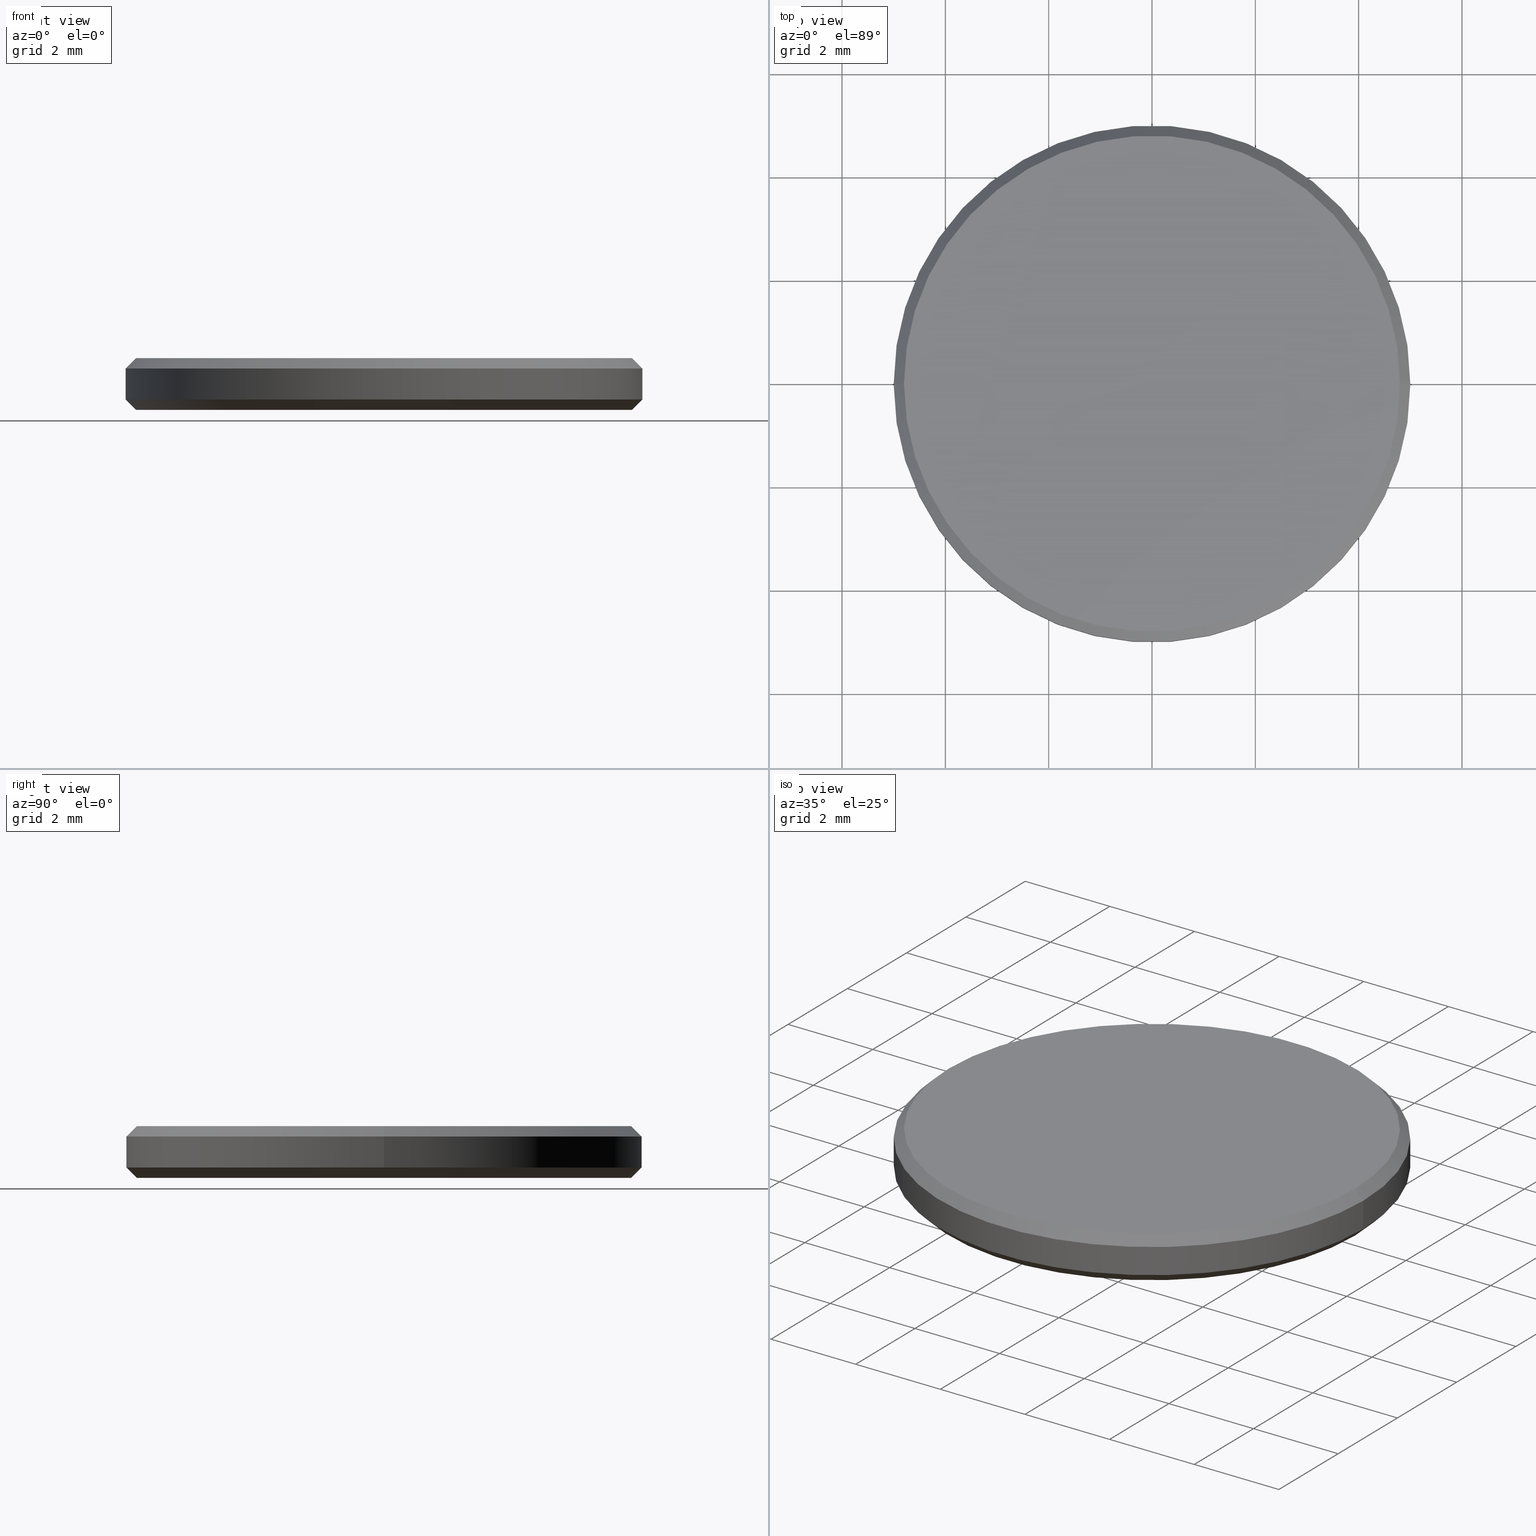
[diagram: canonical four-view strip — front | top / right | iso, engineering-drawing reading convention]
A machine part, canonical four-view strip (front | top / right | iso — engineering-drawing reading convention). The complete STEP part file that produces these views, byte-faithful:
ISO-10303-21;
HEADER;
FILE_DESCRIPTION (( 'STEP AP214' ),
    '1' );
FILE_NAME ('GNIF-170-4260-D10.STEP',
    '2024-07-19T14:42:47',
    ( '' ),
    ( '' ),
    'SwSTEP 2.0',
    'SolidWorks 2022',
    '' );
FILE_SCHEMA (( 'AUTOMOTIVE_DESIGN' ));
ENDSEC;

DATA;
#1 = CONICAL_SURFACE ( 'NONE', #37, 4.800000000000002487, 0.7853981633974461696 ) ;
#2 = ORIENTED_EDGE ( 'NONE', *, *, #224, .F. ) ;
#3 = AXIS2_PLACEMENT_3D ( 'NONE', #187, #182, #12 ) ;
#4 = ORIENTED_EDGE ( 'NONE', *, *, #63, .T. ) ;
#5 = AXIS2_PLACEMENT_3D ( 'NONE', #89, #106, #218 ) ;
#6 = ORIENTED_EDGE ( 'NONE', *, *, #63, .F. ) ;
#7 = EDGE_LOOP ( 'NONE', ( #189, #79, #4, #193 ) ) ;
#8 = VECTOR ( 'NONE', #35, 1000.000000000000114 ) ;
#9 = ADVANCED_FACE ( 'NONE', ( #192 ), #177, .T. ) ;
#10 = DIRECTION ( 'NONE',  ( -0.7071067811865460184, 0.000000000000000000, -0.7071067811865489050 ) ) ;
#11 = FACE_OUTER_BOUND ( 'NONE', #175, .T. ) ;
#12 = DIRECTION ( 'NONE',  ( 1.000000000000000000, 0.000000000000000000, 0.000000000000000000 ) ) ;
#13 = DIRECTION ( 'NONE',  ( 0.000000000000000000, 0.000000000000000000, -1.000000000000000000 ) ) ;
#14 = CARTESIAN_POINT ( 'NONE',  ( 0.000000000000000000, 0.000000000000000000, 0.1999999999999996503 ) ) ;
#15 = PRESENTATION_STYLE_ASSIGNMENT (( #40 ) ) ;
#16 = CARTESIAN_POINT ( 'NONE',  ( 0.000000000000000000, 0.000000000000000000, 0.000000000000000000 ) ) ;
#17 = CARTESIAN_POINT ( 'NONE',  ( -4.799999999999999822, 6.000769315822029754E-16, 0.000000000000000000 ) ) ;
#18 = VECTOR ( 'NONE', #201, 1000.000000000000000 ) ;
#19 = UNCERTAINTY_MEASURE_WITH_UNIT (LENGTH_MEASURE( 1.000000000000000082E-05 ), #197, 'distance_accuracy_value', 'NONE');
#20 = DIRECTION ( 'NONE',  ( 0.000000000000000000, 0.000000000000000000, 1.000000000000000000 ) ) ;
#21 = AXIS2_PLACEMENT_3D ( 'NONE', #104, #74, #84 ) ;
#22 = EDGE_CURVE ( 'NONE', #174, #156, #23, .T. ) ;
#23 = LINE ( 'NONE', #232, #231 ) ;
#24 = ORIENTED_EDGE ( 'NONE', *, *, #195, .F. ) ;
#25 = DIRECTION ( 'NONE',  ( 0.000000000000000000, 0.000000000000000000, -1.000000000000000000 ) ) ;
#26 = VERTEX_POINT ( 'NONE', #173 ) ;
#27 = AXIS2_PLACEMENT_3D ( 'NONE', #14, #200, #88 ) ;
#28 = ORIENTED_EDGE ( 'NONE', *, *, #188, .T. ) ;
#29 = ADVANCED_FACE ( 'NONE', ( #120 ), #1, .T. ) ;
#30 =( GEOMETRIC_REPRESENTATION_CONTEXT ( 3 ) GLOBAL_UNCERTAINTY_ASSIGNED_CONTEXT ( ( #170 ) ) GLOBAL_UNIT_ASSIGNED_CONTEXT ( ( #112, #168, #199 ) ) REPRESENTATION_CONTEXT ( 'NONE', 'WORKASPACE' ) );
#31 = LINE ( 'NONE', #125, #69 ) ;
#32 = STYLED_ITEM ( 'NONE', ( #15 ), #41 ) ;
#33 = DIRECTION ( 'NONE',  ( -0.000000000000000000, -0.000000000000000000, 1.000000000000000000 ) ) ;
#34 = DIRECTION ( 'NONE',  ( 0.000000000000000000, 0.000000000000000000, 1.000000000000000000 ) ) ;
#35 = DIRECTION ( 'NONE',  ( 0.7071067811865460184, 8.659560562354913137E-17, -0.7071067811865489050 ) ) ;
#36 = FACE_OUTER_BOUND ( 'NONE', #207, .T. ) ;
#37 = AXIS2_PLACEMENT_3D ( 'NONE', #47, #25, #99 ) ;
#38 = DIRECTION ( 'NONE',  ( -0.000000000000000000, -0.000000000000000000, 1.000000000000000000 ) ) ;
#39 = FACE_OUTER_BOUND ( 'NONE', #7, .T. ) ;
#40 = SURFACE_STYLE_USAGE ( .BOTH. , #55 ) ;
#41 = ADVANCED_BREP_SHAPE_REPRESENTATION ( 'GNIF-170-4260-D10', ( #103, #43 ), #235 ) ;
#42 = CONICAL_SURFACE ( 'NONE', #72, 5.000000000000000000, 0.7853981633974503884 ) ;
#43 = AXIS2_PLACEMENT_3D ( 'NONE', #87, #20, #225 ) ;
#44 = EDGE_CURVE ( 'NONE', #26, #122, #171, .T. ) ;
#45 = APPLICATION_CONTEXT ( 'automotive_design' ) ;
#46 = EDGE_LOOP ( 'NONE', ( #227, #209, #137, #49 ) ) ;
#47 = CARTESIAN_POINT ( 'NONE',  ( 0.000000000000000000, 0.000000000000000000, 1.000000000000000000 ) ) ;
#48 = VERTEX_POINT ( 'NONE', #198 ) ;
#49 = ORIENTED_EDGE ( 'NONE', *, *, #222, .F. ) ;
#50 = AXIS2_PLACEMENT_3D ( 'NONE', #217, #212, #204 ) ;
#51 = CARTESIAN_POINT ( 'NONE',  ( 0.000000000000000000, 0.000000000000000000, 0.000000000000000000 ) ) ;
#52 = MECHANICAL_DESIGN_GEOMETRIC_PRESENTATION_REPRESENTATION (  '', ( #32 ), #30 ) ;
#53 = DIRECTION ( 'NONE',  ( 1.000000000000000000, 0.000000000000000000, 0.000000000000000000 ) ) ;
#54 = PRODUCT_DEFINITION_SHAPE ( 'NONE', 'NONE',  #149 ) ;
#55 = SURFACE_SIDE_STYLE ('',( #146 ) ) ;
#56 = DIRECTION ( 'NONE',  ( 1.000000000000000000, 0.000000000000000000, -0.000000000000000000 ) ) ;
#57 = CARTESIAN_POINT ( 'NONE',  ( 5.000000000000000000, 6.123233995736766282E-16, 1.000000000000000000 ) ) ;
#58 = CIRCLE ( 'NONE', #159, 4.799999999999999822 ) ;
#59 = DIRECTION ( 'NONE',  ( -1.000000000000000000, 0.000000000000000000, 0.000000000000000000 ) ) ;
#60 = EDGE_CURVE ( 'NONE', #229, #122, #234, .T. ) ;
#61 = DIRECTION ( 'NONE',  ( 0.000000000000000000, 0.000000000000000000, -1.000000000000000000 ) ) ;
#62 = PRODUCT_CONTEXT ( 'NONE', #94, 'mechanical' ) ;
#63 = EDGE_CURVE ( 'NONE', #119, #26, #31, .T. ) ;
#64 = CIRCLE ( 'NONE', #194, 5.000000000000000000 ) ;
#65 = ORIENTED_EDGE ( 'NONE', *, *, #239, .T. ) ;
#66 = EDGE_LOOP ( 'NONE', ( #158, #100 ) ) ;
#67 = ORIENTED_EDGE ( 'NONE', *, *, #141, .F. ) ;
#68 = EDGE_LOOP ( 'NONE', ( #102, #228, #97, #6 ) ) ;
#69 = VECTOR ( 'NONE', #10, 1000.000000000000114 ) ;
#70 = EDGE_CURVE ( 'NONE', #229, #119, #95, .T. ) ;
#71 = CARTESIAN_POINT ( 'NONE',  ( -4.800000000000002487, 0.000000000000000000, 1.000000000000000000 ) ) ;
#72 = AXIS2_PLACEMENT_3D ( 'NONE', #221, #33, #85 ) ;
#73 = DIRECTION ( 'NONE',  ( 1.000000000000000000, 0.000000000000000000, 0.000000000000000000 ) ) ;
#74 = DIRECTION ( 'NONE',  ( 0.000000000000000000, 0.000000000000000000, 1.000000000000000000 ) ) ;
#75 = FACE_OUTER_BOUND ( 'NONE', #191, .T. ) ;
#76 =( GEOMETRIC_REPRESENTATION_CONTEXT ( 3 ) GLOBAL_UNCERTAINTY_ASSIGNED_CONTEXT ( ( #134 ) ) GLOBAL_UNIT_ASSIGNED_CONTEXT ( ( #181, #90, #202 ) ) REPRESENTATION_CONTEXT ( 'NONE', 'WORKASPACE' ) );
#77 = CARTESIAN_POINT ( 'NONE',  ( 0.000000000000000000, 0.000000000000000000, 0.1999999999999996503 ) ) ;
#78 = ORIENTED_EDGE ( 'NONE', *, *, #224, .T. ) ;
#79 = ORIENTED_EDGE ( 'NONE', *, *, #188, .F. ) ;
#80 = ORIENTED_EDGE ( 'NONE', *, *, #101, .F. ) ;
#81 = ORIENTED_EDGE ( 'NONE', *, *, #131, .F. ) ;
#82 = COLOUR_RGB ( '',1.000000000000000000, 1.000000000000000000, 1.000000000000000000 ) ;
#83 = ADVANCED_FACE ( 'NONE', ( #11 ), #196, .T. ) ;
#84 = DIRECTION ( 'NONE',  ( 1.000000000000000000, 0.000000000000000000, -0.000000000000000000 ) ) ;
#85 = DIRECTION ( 'NONE',  ( 1.000000000000000000, 0.000000000000000000, 0.000000000000000000 ) ) ;
#86 = DIRECTION ( 'NONE',  ( 1.000000000000000000, 0.000000000000000000, 0.000000000000000000 ) ) ;
#87 = CARTESIAN_POINT ( 'NONE',  ( 0.000000000000000000, 0.000000000000000000, 0.000000000000000000 ) ) ;
#88 = DIRECTION ( 'NONE',  ( 1.000000000000000000, 0.000000000000000000, 0.000000000000000000 ) ) ;
#89 = CARTESIAN_POINT ( 'NONE',  ( 0.000000000000000000, 0.000000000000000000, 1.000000000000000000 ) ) ;
#90 =( NAMED_UNIT ( * ) PLANE_ANGLE_UNIT ( ) SI_UNIT ( $, .RADIAN. ) );
#91 = AXIS2_PLACEMENT_3D ( 'NONE', #151, #220, #59 ) ;
#92 = FILL_AREA_STYLE_COLOUR ( '', #164 ) ;
#93 = ADVANCED_FACE ( 'NONE', ( #162 ), #109, .F. ) ;
#94 = APPLICATION_CONTEXT ( 'automotive_design' ) ;
#95 = CIRCLE ( 'NONE', #130, 4.800000000000002487 ) ;
#96 = DIRECTION ( 'NONE',  ( 0.7071067811865490160, 0.000000000000000000, 0.7071067811865459074 ) ) ;
#97 = ORIENTED_EDGE ( 'NONE', *, *, #44, .F. ) ;
#98 = AXIS2_PLACEMENT_3D ( 'NONE', #163, #61, #73 ) ;
#99 = DIRECTION ( 'NONE',  ( -1.000000000000000000, 0.000000000000000000, 0.000000000000000000 ) ) ;
#100 = ORIENTED_EDGE ( 'NONE', *, *, #101, .T. ) ;
#101 = EDGE_CURVE ( 'NONE', #208, #174, #58, .T. ) ;
#102 = ORIENTED_EDGE ( 'NONE', *, *, #70, .F. ) ;
#103 = MANIFOLD_SOLID_BREP ( '����1', #139 ) ;
#104 = CARTESIAN_POINT ( 'NONE',  ( 0.000000000000000000, 0.000000000000000000, 1.000000000000000000 ) ) ;
#105 = CARTESIAN_POINT ( 'NONE',  ( 0.000000000000000000, 0.000000000000000000, 1.000000000000000000 ) ) ;
#106 = DIRECTION ( 'NONE',  ( 0.000000000000000000, 0.000000000000000000, 1.000000000000000000 ) ) ;
#107 = DIRECTION ( 'NONE',  ( 1.000000000000000000, 0.000000000000000000, 0.000000000000000000 ) ) ;
#108 = CARTESIAN_POINT ( 'NONE',  ( -5.000000000000000000, 6.123233995736765296E-16, 0.1999999999999996503 ) ) ;
#109 = PLANE ( 'NONE',  #118 ) ;
#110 = AXIS2_PLACEMENT_3D ( 'NONE', #138, #13, #86 ) ;
#111 = DIRECTION ( 'NONE',  ( 0.000000000000000000, 0.000000000000000000, 1.000000000000000000 ) ) ;
#112 =( LENGTH_UNIT ( ) NAMED_UNIT ( * ) SI_UNIT ( .MILLI., .METRE. ) );
#113 = PRODUCT_RELATED_PRODUCT_CATEGORY ( 'part', '', ( #237 ) ) ;
#114 = VECTOR ( 'NONE', #180, 1000.000000000000000 ) ;
#115 = LINE ( 'NONE', #108, #114 ) ;
#116 = SHAPE_DEFINITION_REPRESENTATION ( #54, #41 ) ;
#117 = CIRCLE ( 'NONE', #5, 4.800000000000002487 ) ;
#118 = AXIS2_PLACEMENT_3D ( 'NONE', #145, #111, #56 ) ;
#119 = VERTEX_POINT ( 'NONE', #71 ) ;
#120 = FACE_OUTER_BOUND ( 'NONE', #68, .T. ) ;
#121 = ORIENTED_EDGE ( 'NONE', *, *, #22, .F. ) ;
#122 = VERTEX_POINT ( 'NONE', #126 ) ;
#123 = AXIS2_PLACEMENT_3D ( 'NONE', #51, #236, #107 ) ;
#124 = SURFACE_STYLE_USAGE ( .BOTH. , #185 ) ;
#125 = CARTESIAN_POINT ( 'NONE',  ( -4.800000000000002487, 0.000000000000000000, 1.000000000000000000 ) ) ;
#126 = CARTESIAN_POINT ( 'NONE',  ( 5.000000000000000000, 6.123233995736766282E-16, 0.8000000000000012657 ) ) ;
#127 = FACE_OUTER_BOUND ( 'NONE', #211, .T. ) ;
#128 = DIRECTION ( 'NONE',  ( -0.000000000000000000, -0.000000000000000000, -1.000000000000000000 ) ) ;
#129 = FILL_AREA_STYLE_COLOUR ( '', #82 ) ;
#130 = AXIS2_PLACEMENT_3D ( 'NONE', #105, #34, #144 ) ;
#131 = EDGE_CURVE ( 'NONE', #174, #208, #205, .T. ) ;
#132 = CARTESIAN_POINT ( 'NONE',  ( 4.799999999999999822, 0.000000000000000000, 0.000000000000000000 ) ) ;
#133 = CARTESIAN_POINT ( 'NONE',  ( -5.000000000000000000, 0.000000000000000000, 1.000000000000000000 ) ) ;
#134 = UNCERTAINTY_MEASURE_WITH_UNIT (LENGTH_MEASURE( 1.000000000000000082E-05 ), #181, 'distance_accuracy_value', 'NONE');
#135 = CONICAL_SURFACE ( 'NONE', #27, 5.000000000000000000, 0.7853981633974503884 ) ;
#136 = DIRECTION ( 'NONE',  ( -1.000000000000000000, 0.000000000000000000, 0.000000000000000000 ) ) ;
#137 = ORIENTED_EDGE ( 'NONE', *, *, #141, .T. ) ;
#138 = CARTESIAN_POINT ( 'NONE',  ( 0.000000000000000000, 0.000000000000000000, 0.8000000000000012657 ) ) ;
#139 = CLOSED_SHELL ( 'NONE', ( #230, #29, #9, #172, #83, #93, #179, #152 ) ) ;
#140 = ORIENTED_EDGE ( 'NONE', *, *, #186, .F. ) ;
#141 = EDGE_CURVE ( 'NONE', #156, #48, #64, .T. ) ;
#142 = SURFACE_STYLE_FILL_AREA ( #214 ) ;
#143 = CIRCLE ( 'NONE', #98, 5.000000000000000000 ) ;
#144 = DIRECTION ( 'NONE',  ( 1.000000000000000000, 0.000000000000000000, 0.000000000000000000 ) ) ;
#145 = CARTESIAN_POINT ( 'NONE',  ( 0.000000000000000000, 0.000000000000000000, 0.000000000000000000 ) ) ;
#146 = SURFACE_STYLE_FILL_AREA ( #184 ) ;
#147 = VECTOR ( 'NONE', #128, 1000.000000000000000 ) ;
#148 = CYLINDRICAL_SURFACE ( 'NONE', #50, 5.000000000000000000 ) ;
#149 = PRODUCT_DEFINITION ( 'δ֪', '', #154, #223 ) ;
#150 = LINE ( 'NONE', #133, #18 ) ;
#151 = CARTESIAN_POINT ( 'NONE',  ( 0.000000000000000000, 0.000000000000000000, 1.000000000000000000 ) ) ;
#152 = ADVANCED_FACE ( 'NONE', ( #127 ), #135, .T. ) ;
#153 = ORIENTED_EDGE ( 'NONE', *, *, #22, .T. ) ;
#154 = PRODUCT_DEFINITION_FORMATION_WITH_SPECIFIED_SOURCE ( '�κ�', '', #237, .NOT_KNOWN. ) ;
#155 = CIRCLE ( 'NONE', #3, 5.000000000000000000 ) ;
#156 = VERTEX_POINT ( 'NONE', #165 ) ;
#157 = ORIENTED_EDGE ( 'NONE', *, *, #70, .T. ) ;
#158 = ORIENTED_EDGE ( 'NONE', *, *, #131, .T. ) ;
#159 = AXIS2_PLACEMENT_3D ( 'NONE', #16, #183, #178 ) ;
#160 = DIRECTION ( 'NONE',  ( -0.000000000000000000, -0.000000000000000000, -1.000000000000000000 ) ) ;
#161 = CARTESIAN_POINT ( 'NONE',  ( 4.800000000000002487, 5.878304635907297169E-16, 1.000000000000000000 ) ) ;
#162 = FACE_OUTER_BOUND ( 'NONE', #66, .T. ) ;
#163 = CARTESIAN_POINT ( 'NONE',  ( 0.000000000000000000, 0.000000000000000000, 0.8000000000000012657 ) ) ;
#164 = COLOUR_RGB ( '',1.000000000000000000, 1.000000000000000000, 1.000000000000000000 ) ;
#165 = CARTESIAN_POINT ( 'NONE',  ( 5.000000000000000000, 6.123233995736766282E-16, 0.1999999999999996503 ) ) ;
#166 = MECHANICAL_DESIGN_GEOMETRIC_PRESENTATION_REPRESENTATION (  '', ( #219 ), #76 ) ;
#167 = CARTESIAN_POINT ( 'NONE',  ( 4.800000000000002487, 6.000769315822031726E-16, 1.000000000000000000 ) ) ;
#168 =( NAMED_UNIT ( * ) PLANE_ANGLE_UNIT ( ) SI_UNIT ( $, .RADIAN. ) );
#169 = PRESENTATION_LAYER_ASSIGNMENT (  '', '', ( #32 ) ) ;
#170 = UNCERTAINTY_MEASURE_WITH_UNIT (LENGTH_MEASURE( 1.000000000000000082E-05 ), #112, 'distance_accuracy_value', 'NONE');
#171 = CIRCLE ( 'NONE', #110, 5.000000000000000000 ) ;
#172 = ADVANCED_FACE ( 'NONE', ( #75 ), #148, .T. ) ;
#173 = CARTESIAN_POINT ( 'NONE',  ( -5.000000000000000000, 0.000000000000000000, 0.8000000000000012657 ) ) ;
#174 = VERTEX_POINT ( 'NONE', #132 ) ;
#175 = EDGE_LOOP ( 'NONE', ( #28, #157 ) ) ;
#176 = ORIENTED_EDGE ( 'NONE', *, *, #222, .T. ) ;
#177 = CYLINDRICAL_SURFACE ( 'NONE', #210, 5.000000000000000000 ) ;
#178 = DIRECTION ( 'NONE',  ( 1.000000000000000000, 0.000000000000000000, 0.000000000000000000 ) ) ;
#179 = ADVANCED_FACE ( 'NONE', ( #39 ), #216, .T. ) ;
#180 = DIRECTION ( 'NONE',  ( -0.7071067811865490160, 8.659560562354950115E-17, 0.7071067811865459074 ) ) ;
#181 =( LENGTH_UNIT ( ) NAMED_UNIT ( * ) SI_UNIT ( .MILLI., .METRE. ) );
#182 = DIRECTION ( 'NONE',  ( -0.000000000000000000, -0.000000000000000000, 1.000000000000000000 ) ) ;
#183 = DIRECTION ( 'NONE',  ( -0.000000000000000000, -0.000000000000000000, -1.000000000000000000 ) ) ;
#184 = FILL_AREA_STYLE ('',( #92 ) ) ;
#185 = SURFACE_SIDE_STYLE ('',( #142 ) ) ;
#186 = EDGE_CURVE ( 'NONE', #208, #48, #115, .T. ) ;
#187 = CARTESIAN_POINT ( 'NONE',  ( 0.000000000000000000, 0.000000000000000000, 0.1999999999999996503 ) ) ;
#188 = EDGE_CURVE ( 'NONE', #119, #229, #117, .T. ) ;
#189 = ORIENTED_EDGE ( 'NONE', *, *, #60, .F. ) ;
#190 = ORIENTED_EDGE ( 'NONE', *, *, #186, .T. ) ;
#191 = EDGE_LOOP ( 'NONE', ( #24, #65, #176, #78 ) ) ;
#192 = FACE_OUTER_BOUND ( 'NONE', #46, .T. ) ;
#193 = ORIENTED_EDGE ( 'NONE', *, *, #239, .F. ) ;
#194 = AXIS2_PLACEMENT_3D ( 'NONE', #77, #38, #53 ) ;
#195 = EDGE_CURVE ( 'NONE', #122, #156, #240, .T. ) ;
#196 = PLANE ( 'NONE',  #21 ) ;
#197 =( LENGTH_UNIT ( ) NAMED_UNIT ( * ) SI_UNIT ( .MILLI., .METRE. ) );
#198 = CARTESIAN_POINT ( 'NONE',  ( -5.000000000000000000, 0.000000000000000000, 0.1999999999999996503 ) ) ;
#199 =( NAMED_UNIT ( * ) SI_UNIT ( $, .STERADIAN. ) SOLID_ANGLE_UNIT ( ) );
#200 = DIRECTION ( 'NONE',  ( -0.000000000000000000, -0.000000000000000000, 1.000000000000000000 ) ) ;
#201 = DIRECTION ( 'NONE',  ( -0.000000000000000000, -0.000000000000000000, -1.000000000000000000 ) ) ;
#202 =( NAMED_UNIT ( * ) SI_UNIT ( $, .STERADIAN. ) SOLID_ANGLE_UNIT ( ) );
#203 = APPLICATION_PROTOCOL_DEFINITION ( 'draft international standard', 'automotive_design', 1998, #94 ) ;
#204 = DIRECTION ( 'NONE',  ( -1.000000000000000000, 0.000000000000000000, 0.000000000000000000 ) ) ;
#205 = CIRCLE ( 'NONE', #123, 4.799999999999999822 ) ;
#206 = APPLICATION_PROTOCOL_DEFINITION ( 'draft international standard', 'automotive_design', 1998, #45 ) ;
#207 = EDGE_LOOP ( 'NONE', ( #80, #190, #67, #121 ) ) ;
#208 = VERTEX_POINT ( 'NONE', #17 ) ;
#209 = ORIENTED_EDGE ( 'NONE', *, *, #195, .T. ) ;
#210 = AXIS2_PLACEMENT_3D ( 'NONE', #226, #160, #136 ) ;
#211 = EDGE_LOOP ( 'NONE', ( #140, #81, #153, #2 ) ) ;
#212 = DIRECTION ( 'NONE',  ( -0.000000000000000000, -0.000000000000000000, -1.000000000000000000 ) ) ;
#213 =( NAMED_UNIT ( * ) SI_UNIT ( $, .STERADIAN. ) SOLID_ANGLE_UNIT ( ) );
#214 = FILL_AREA_STYLE ('',( #129 ) ) ;
#215 =( NAMED_UNIT ( * ) PLANE_ANGLE_UNIT ( ) SI_UNIT ( $, .RADIAN. ) );
#216 = CONICAL_SURFACE ( 'NONE', #91, 4.800000000000002487, 0.7853981633974461696 ) ;
#217 = CARTESIAN_POINT ( 'NONE',  ( 0.000000000000000000, 0.000000000000000000, 1.000000000000000000 ) ) ;
#218 = DIRECTION ( 'NONE',  ( 1.000000000000000000, 0.000000000000000000, 0.000000000000000000 ) ) ;
#219 = STYLED_ITEM ( 'NONE', ( #233 ), #103 ) ;
#220 = DIRECTION ( 'NONE',  ( 0.000000000000000000, 0.000000000000000000, -1.000000000000000000 ) ) ;
#221 = CARTESIAN_POINT ( 'NONE',  ( 0.000000000000000000, 0.000000000000000000, 0.1999999999999996503 ) ) ;
#222 = EDGE_CURVE ( 'NONE', #26, #48, #150, .T. ) ;
#223 = PRODUCT_DEFINITION_CONTEXT ( 'detailed design', #45, 'design' ) ;
#224 = EDGE_CURVE ( 'NONE', #48, #156, #155, .T. ) ;
#225 = DIRECTION ( 'NONE',  ( 1.000000000000000000, 0.000000000000000000, 0.000000000000000000 ) ) ;
#226 = CARTESIAN_POINT ( 'NONE',  ( 0.000000000000000000, 0.000000000000000000, 1.000000000000000000 ) ) ;
#227 = ORIENTED_EDGE ( 'NONE', *, *, #44, .T. ) ;
#228 = ORIENTED_EDGE ( 'NONE', *, *, #60, .T. ) ;
#229 = VERTEX_POINT ( 'NONE', #167 ) ;
#230 = ADVANCED_FACE ( 'NONE', ( #36 ), #42, .T. ) ;
#231 = VECTOR ( 'NONE', #96, 1000.000000000000000 ) ;
#232 = CARTESIAN_POINT ( 'NONE',  ( 5.000000000000000000, 0.000000000000000000, 0.1999999999999996503 ) ) ;
#233 = PRESENTATION_STYLE_ASSIGNMENT (( #124 ) ) ;
#234 = LINE ( 'NONE', #161, #8 ) ;
#235 =( GEOMETRIC_REPRESENTATION_CONTEXT ( 3 ) GLOBAL_UNCERTAINTY_ASSIGNED_CONTEXT ( ( #19 ) ) GLOBAL_UNIT_ASSIGNED_CONTEXT ( ( #197, #215, #213 ) ) REPRESENTATION_CONTEXT ( 'NONE', 'WORKASPACE' ) );
#236 = DIRECTION ( 'NONE',  ( -0.000000000000000000, -0.000000000000000000, -1.000000000000000000 ) ) ;
#237 = PRODUCT ( 'GNIF-170-4260-D10', 'GNIF-170-4260-D10', '', ( #62 ) ) ;
#238 = PRESENTATION_LAYER_ASSIGNMENT (  '', '', ( #219 ) ) ;
#239 = EDGE_CURVE ( 'NONE', #122, #26, #143, .T. ) ;
#240 = LINE ( 'NONE', #57, #147 ) ;
ENDSEC;
END-ISO-10303-21;
